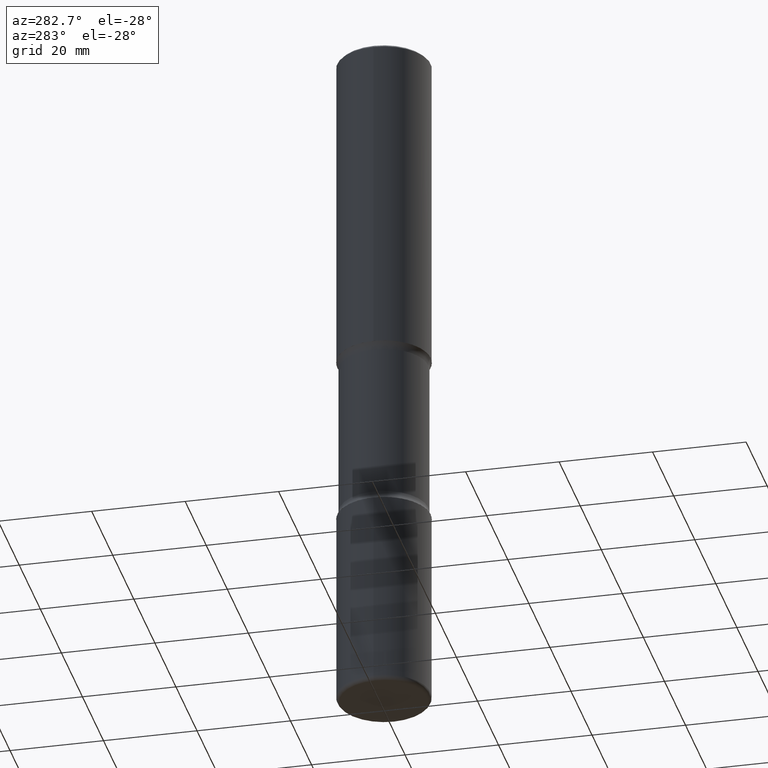
[diagram: clean part render]
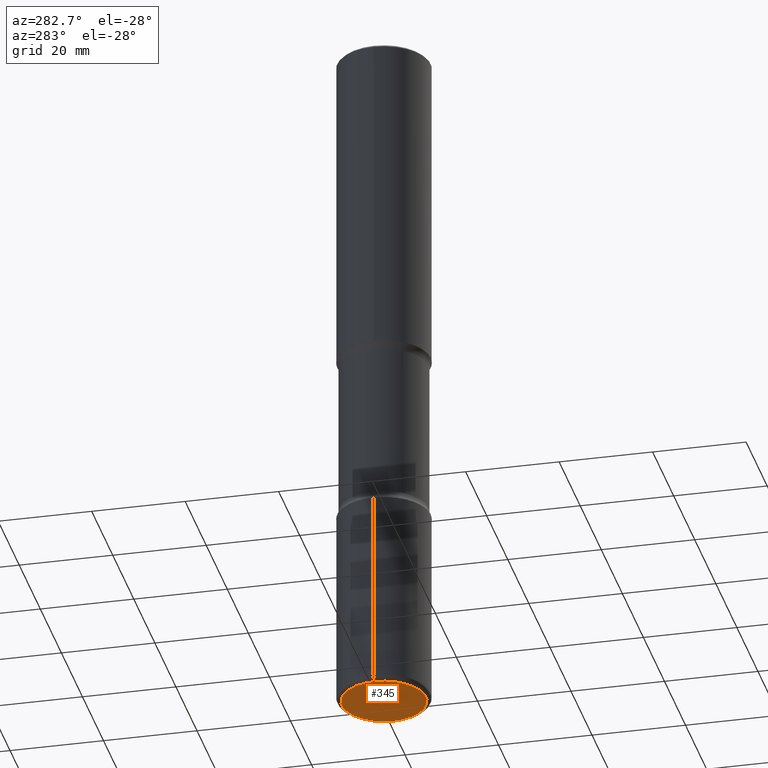
[diagram: same view with one face highlighted and labeled with its STEP entity id]
A machine part, auxiliary view. The second image highlights one B-rep face of the part: STEP entity #345.
In plain terms, the highlighted planar face has unit normal (0, -0, -1).
Its self-contained STEP definition (entity closure, byte-faithful):
#47 = EDGE_CURVE ( 'NONE', #285, #247, #289, .T. ) ;
#76 = EDGE_LOOP ( 'NONE', ( #112, #164 ) ) ;
#89 = FACE_OUTER_BOUND ( 'NONE', #76, .T. ) ;
#112 = ORIENTED_EDGE ( 'NONE', *, *, #47, .F. ) ;
#131 = AXIS2_PLACEMENT_3D ( 'NONE', #169, #308, #256 ) ;
#164 = ORIENTED_EDGE ( 'NONE', *, *, #524, .F. ) ;
#169 = CARTESIAN_POINT ( 'NONE',  ( 1.444171603492632270E-28, -2.061894304653819197E-14, -5.905499999999999972 ) ) ;
#217 = DIRECTION ( 'NONE',  ( -2.445468806185136597E-29, 3.491481338843145583E-15, 1.000000000000000000 ) ) ;
#247 = VERTEX_POINT ( 'NONE', #490 ) ;
#256 = DIRECTION ( 'NONE',  ( 1.000000000000000000, -6.982962677686265133E-15, 0.000000000000000000 ) ) ;
#264 = CARTESIAN_POINT ( 'NONE',  ( 1.723044131305019458E-29, -3.883280511437256617E-14, -5.905499999999998195 ) ) ;
#285 = VERTEX_POINT ( 'NONE', #424 ) ;
#289 = CIRCLE ( 'NONE', #467, 0.3543000000000003924 ) ;
#308 = DIRECTION ( 'NONE',  ( -2.445468806185136597E-29, 3.491481338843145583E-15, 1.000000000000000000 ) ) ;
#345 = ADVANCED_FACE ( 'NONE', ( #89 ), #351, .T. ) ;
#351 = PLANE ( 'NONE',  #436 ) ;
#359 = CARTESIAN_POINT ( 'NONE',  ( 1.444171603492632270E-28, -2.061894304653819197E-14, -5.905499999999999972 ) ) ;
#424 = CARTESIAN_POINT ( 'NONE',  ( 0.3543000000000003924, -2.309300672324243991E-14, -5.905499999999999972 ) ) ;
#432 = DIRECTION ( 'NONE',  ( 2.438088387897960049E-29, -3.491481338843145188E-15, -1.000000000000000000 ) ) ;
#436 = AXIS2_PLACEMENT_3D ( 'NONE', #264, #432, #457 ) ;
#457 = DIRECTION ( 'NONE',  ( -1.000000000000000000, 6.982962677686265922E-15, -4.876176775795935793E-29 ) ) ;
#461 = CIRCLE ( 'NONE', #131, 0.3543000000000003924 ) ;
#467 = AXIS2_PLACEMENT_3D ( 'NONE', #359, #217, #484 ) ;
#484 = DIRECTION ( 'NONE',  ( 1.000000000000000000, -6.982962677686265133E-15, 0.000000000000000000 ) ) ;
#490 = CARTESIAN_POINT ( 'NONE',  ( -0.3543000000000003924, -1.789273103242020530E-14, -5.905499999999999972 ) ) ;
#524 = EDGE_CURVE ( 'NONE', #247, #285, #461, .T. ) ;